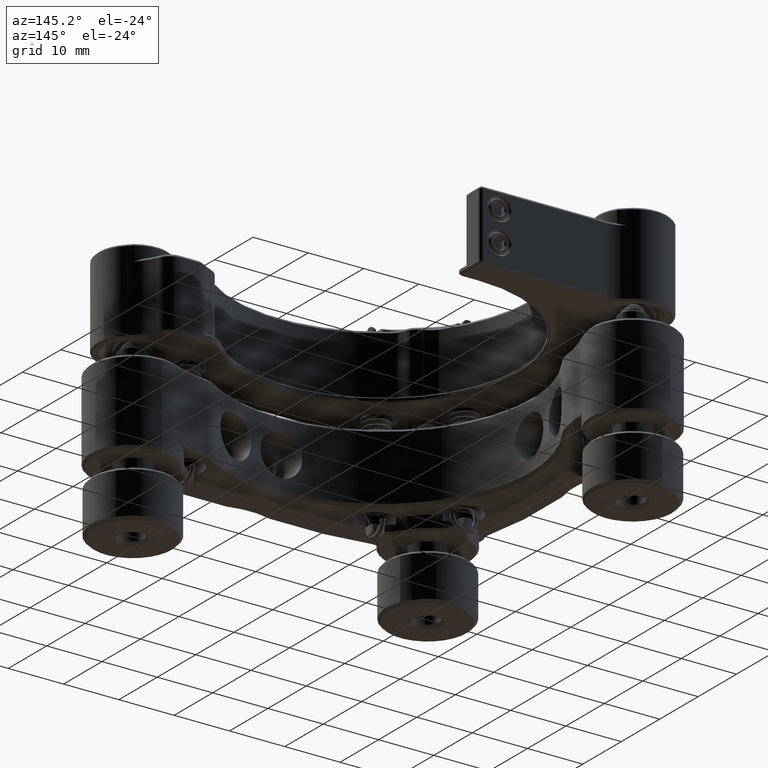
[diagram: clean part render]
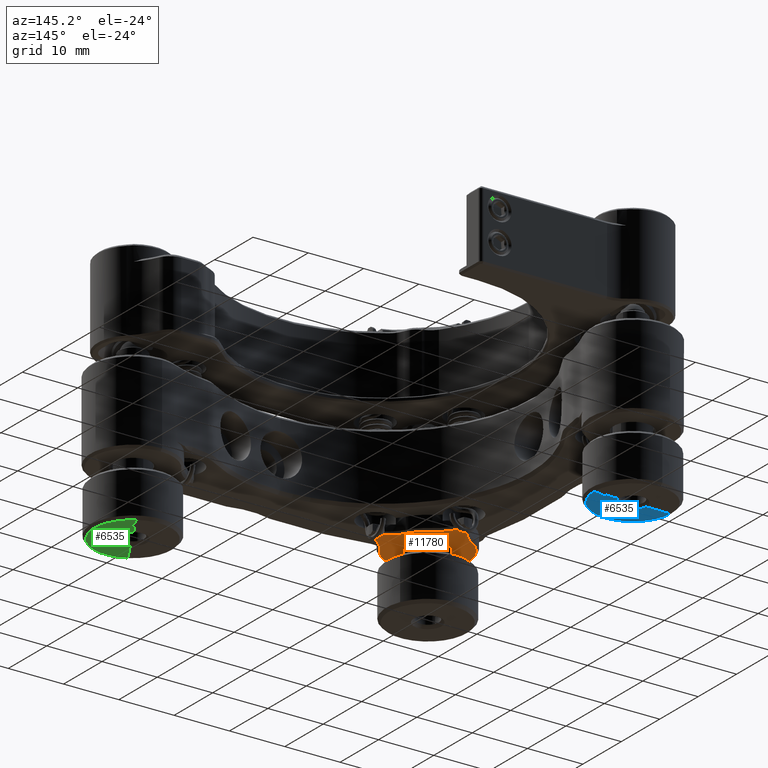
[diagram: same view with three faces highlighted in distinct colors, each labeled with its STEP entity id]
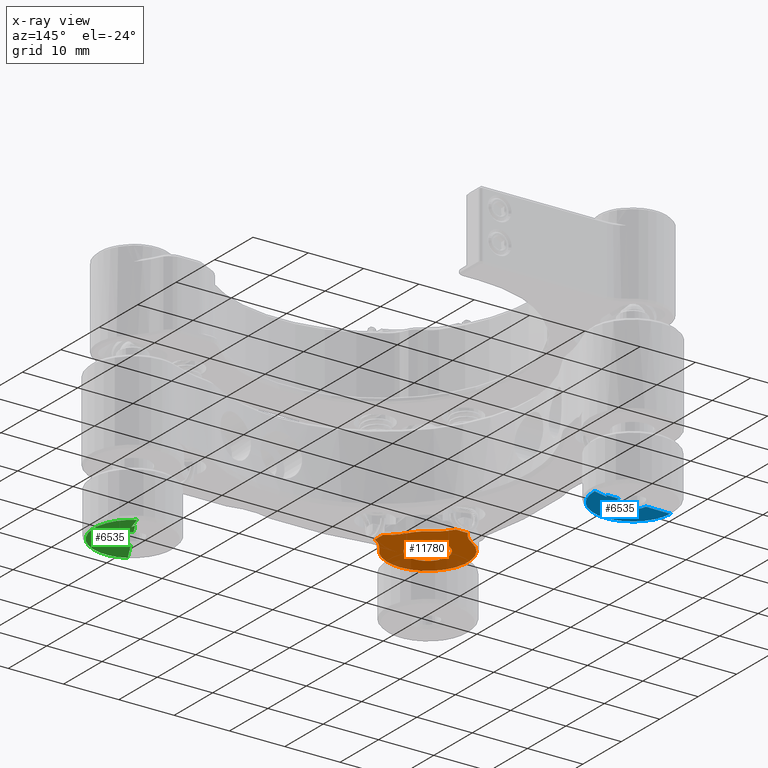
[diagram: x-ray of the same camera — body ghosted, the three highlighted faces saturated]
A machine part, auxiliary view with three faces highlighted in distinct colors.
The next image is the same camera in x-ray (body ghosted, the three faces saturated) — at least one of them is partly hidden behind the body in this view.
Their STEP definitions:

[orange] entity #11780 — the highlighted planar face has unit normal (0, 0, -1).
#59 = DIRECTION ( 'NONE',  ( -0.000000000000000000, 0.000000000000000000, 1.000000000000000000 ) ) ;
#210 = CARTESIAN_POINT ( 'NONE',  ( -0.7653493517946683422, 22.80522833792558757, 60.18502420018479171 ) ) ;
#343 = VERTEX_POINT ( 'NONE', #22457 ) ;
#357 = CARTESIAN_POINT ( 'NONE',  ( -1.117365578020270478, 22.81051906753168268, 60.18502420018477750 ) ) ;
#393 = ORIENTED_EDGE ( 'NONE', *, *, #27316, .T. ) ;
#562 = AXIS2_PLACEMENT_3D ( 'NONE', #4621, #29039, #22523 ) ;
#647 = CARTESIAN_POINT ( 'NONE',  ( -0.8532585333601061528, 22.80522833792559112, 60.18502420018480592 ) ) ;
#824 = AXIS2_PLACEMENT_3D ( 'NONE', #13574, #13013, #17403 ) ;
#932 = VERTEX_POINT ( 'NONE', #18307 ) ;
#990 = VERTEX_POINT ( 'NONE', #8560 ) ;
#1966 = CARTESIAN_POINT ( 'NONE',  ( 7.554555930480383097, 13.60718977266598984, 60.18502420018480592 ) ) ;
#1967 = DIRECTION ( 'NONE',  ( -1.000000000000000000, -8.518532524812835193E-16, 0.000000000000000000 ) ) ;
#2162 = B_SPLINE_CURVE_WITH_KNOTS ( 'NONE', 3,
 ( #20039, #29045, #8878, #17822, #5968, #23864 ),
 .UNSPECIFIED., .F., .F.,
 ( 4, 2, 4 ),
 ( 3.903127820947815962E-18, 0.0002630762422998615441, 0.0005261524845997191851 ),
 .UNSPECIFIED. ) ;
#2349 = CARTESIAN_POINT ( 'NONE',  ( 7.552550669755890844, 12.92063153528131458, 60.18502420018479171 ) ) ;
#2564 = CARTESIAN_POINT ( 'NONE',  ( -1.250540495281412534, 22.81188567596354133, 60.18502420018477750 ) ) ;
#2977 = CARTESIAN_POINT ( 'NONE',  ( 4.990031056397389086, 17.55385682309736239, 60.18502420018479171 ) ) ;
#3046 = CARTESIAN_POINT ( 'NONE',  ( -0.7653493517946683422, 22.80522833792558757, 60.18502420018479171 ) ) ;
#3108 = CARTESIAN_POINT ( 'NONE',  ( -8.293461811908150239, 26.19546241567546119, 60.18502420018479171 ) ) ;
#3593 = ORIENTED_EDGE ( 'NONE', *, *, #25045, .T. ) ;
#4210 = CARTESIAN_POINT ( 'NONE',  ( 25.37656882689406501, 40.62924649506378927, 60.18502420018479171 ) ) ;
#4569 = CIRCLE ( 'NONE', #9277, 6.857999999999996099 ) ;
#4594 = CIRCLE ( 'NONE', #824, 6.857999999999923268 ) ;
#4621 = CARTESIAN_POINT ( 'NONE',  ( -1.293431173105919596, 13.95924649506378401, 60.18502420018479171 ) ) ;
#4816 = ORIENTED_EDGE ( 'NONE', *, *, #8355, .T. ) ;
#4819 = CARTESIAN_POINT ( 'NONE',  ( 7.552550669755884627, 40.62924649506378216, 60.18502420018479171 ) ) ;
#4901 = VERTEX_POINT ( 'NONE', #29075 ) ;
#4941 = DIRECTION ( 'NONE',  ( -2.583697721438729718E-16, 1.000000000000000000, 0.000000000000000000 ) ) ;
#5210 = VERTEX_POINT ( 'NONE', #12282 ) ;
#5467 = EDGE_CURVE ( 'NONE', #4901, #990, #8093, .T. ) ;
#5914 = DIRECTION ( 'NONE',  ( 0.000000000000000000, -0.000000000000000000, -1.000000000000000000 ) ) ;
#5968 = CARTESIAN_POINT ( 'NONE',  ( -1.733581417244780987, 22.80522833792558401, 60.18502420018479171 ) ) ;
#5993 = LINE ( 'NONE', #26273, #13063 ) ;
#6491 = CARTESIAN_POINT ( 'NONE',  ( 2.321509732016548533, 13.95924649506378401, 60.18502420018479171 ) ) ;
#6569 = DIRECTION ( 'NONE',  ( 1.000000000000000000, 0.000000000000000000, 0.000000000000000000 ) ) ;
#6804 = VERTEX_POINT ( 'NONE', #16572 ) ;
#6867 = CIRCLE ( 'NONE', #23279, 3.614940905122474124 ) ;
#6970 = VECTOR ( 'NONE', #13772, 1000.000000000000000 ) ;
#7122 = CIRCLE ( 'NONE', #27297, 6.857999999999999652 ) ;
#7138 = AXIS2_PLACEMENT_3D ( 'NONE', #8051, #16996, #23325 ) ;
#7488 = CARTESIAN_POINT ( 'NONE',  ( 7.557909002323352610, 14.13528312624996452, 60.18502420018480592 ) ) ;
#8051 = CARTESIAN_POINT ( 'NONE',  ( -1.293431173105919596, 13.95924649506378401, 60.18502420018479171 ) ) ;
#8093 = CIRCLE ( 'NONE', #562, 7.239000000000068269 ) ;
#8355 = EDGE_CURVE ( 'NONE', #26379, #23023, #26395, .T. ) ;
#8560 = CARTESIAN_POINT ( 'NONE',  ( 4.990031056397427278, 10.36463616703018431, 60.18502420018479171 ) ) ;
#8758 = CIRCLE ( 'NONE', #20937, 7.239000000000024748 ) ;
#8878 = CARTESIAN_POINT ( 'NONE',  ( -1.469390293031126005, 22.81058809381694630, 60.18502420018480592 ) ) ;
#9277 = AXIS2_PLACEMENT_3D ( 'NONE', #12808, #19555, #17488 ) ;
#9343 = CARTESIAN_POINT ( 'NONE',  ( -1.073355090362226649, 22.80974778019937332, 60.18502420018477750 ) ) ;
#9692 = CARTESIAN_POINT ( 'NONE',  ( 7.559208007793849049, 13.95924649506383552, 60.18502420018479171 ) ) ;
#9765 = VERTEX_POINT ( 'NONE', #20550 ) ;
#9844 = B_SPLINE_CURVE_WITH_KNOTS ( 'NONE', 3,
 ( #210, #647, #27708, #9343, #357, #22684, #2564, #22537 ),
 .UNSPECIFIED., .F., .F.,
 ( 4, 2, 2, 4 ),
 ( 0.006817532226052925790, 0.007074175373250077802, 0.007202496946848653374, 0.007330818520447228946 ),
 .UNSPECIFIED. ) ;
#10472 = CARTESIAN_POINT ( 'NONE',  ( 5.706599465696283069, 26.19546241567547540, 60.18502420018479171 ) ) ;
#10526 = AXIS2_PLACEMENT_3D ( 'NONE', #18987, #5914, #25758 ) ;
#10588 = ORIENTED_EDGE ( 'NONE', *, *, #22834, .T. ) ;
#10762 = DIRECTION ( 'NONE',  ( 0.000000000000000000, -0.000000000000000000, -1.000000000000000000 ) ) ;
#11148 = LINE ( 'NONE', #4819, #6970 ) ;
#11660 = CIRCLE ( 'NONE', #23358, 6.857999999999925933 ) ;
#11780 = ADVANCED_FACE ( 'NONE', ( #24035, #12895 ), #24325, .T. ) ;
#12127 = EDGE_CURVE ( 'NONE', #20845, #9765, #22689, .T. ) ;
#12223 = ORIENTED_EDGE ( 'NONE', *, *, #27274, .T. ) ;
#12282 = CARTESIAN_POINT ( 'NONE',  ( 7.552550669755894397, 14.48732831637503438, 60.18502420018479171 ) ) ;
#12808 = CARTESIAN_POINT ( 'NONE',  ( 10.94278474750576180, 20.95927713386599933, 60.18502420018479171 ) ) ;
#12895 = FACE_BOUND ( 'NONE', #22578, .T. ) ;
#12897 = CARTESIAN_POINT ( 'NONE',  ( -1.293431173105919596, 13.95924649506378401, 60.18502420018479171 ) ) ;
#13013 = DIRECTION ( 'NONE',  ( 0.000000000000000000, -0.000000000000000000, -1.000000000000000000 ) ) ;
#13063 = VECTOR ( 'NONE', #26127, 1000.000000000000000 ) ;
#13283 = CARTESIAN_POINT ( 'NONE',  ( 7.559208007793850825, 13.87124414227666769, 60.18502420018479171 ) ) ;
#13574 = CARTESIAN_POINT ( 'NONE',  ( 10.94278474750576180, 6.959215856261566024, 60.18502420018479171 ) ) ;
#13772 = DIRECTION ( 'NONE',  ( -2.583697721438729718E-16, 1.000000000000000000, 0.000000000000000000 ) ) ;
#14195 = CARTESIAN_POINT ( 'NONE',  ( 7.552550669755884627, 40.62924649506378216, 60.18502420018479171 ) ) ;
#14706 = DIRECTION ( 'NONE',  ( 1.000000000000000000, 0.000000000000000000, 0.000000000000000000 ) ) ;
#14731 = VERTEX_POINT ( 'NONE', #22852 ) ;
#14972 = CARTESIAN_POINT ( 'NONE',  ( -1.293431173105919596, 13.95924649506378401, 60.18502420018479171 ) ) ;
#15323 = B_SPLINE_CURVE_WITH_KNOTS ( 'NONE', 3,
 ( #9692, #16569, #7488, #16424, #25397, #25545 ),
 .UNSPECIFIED., .F., .F.,
 ( 4, 2, 4 ),
 ( 0.003674336078343240150, 0.003929076275555706821, 0.004183816472768172624 ),
 .UNSPECIFIED. ) ;
#15377 = DIRECTION ( 'NONE',  ( 0.000000000000000000, -0.000000000000000000, -1.000000000000000000 ) ) ;
#15485 = CARTESIAN_POINT ( 'NONE',  ( 25.37656882689407922, 22.80522833792560888, 60.18502420018479171 ) ) ;
#15897 = EDGE_CURVE ( 'NONE', #16638, #21628, #8758, .T. ) ;
#16131 = EDGE_CURVE ( 'NONE', #23023, #343, #9844, .T. ) ;
#16386 = LINE ( 'NONE', #14195, #27338 ) ;
#16424 = CARTESIAN_POINT ( 'NONE',  ( 7.554556000486260636, 14.31129886845954502, 60.18502420018479171 ) ) ;
#16569 = CARTESIAN_POINT ( 'NONE',  ( 7.559208007793847273, 14.04727141604706553, 60.18502420018479171 ) ) ;
#16572 = CARTESIAN_POINT ( 'NONE',  ( -4.888041501139528400, 20.24270872456712667, 60.18502420018479171 ) ) ;
#16638 = VERTEX_POINT ( 'NONE', #2977 ) ;
#16956 = VERTEX_POINT ( 'NONE', #25601 ) ;
#16996 = DIRECTION ( 'NONE',  ( -0.000000000000000000, 0.000000000000000000, 1.000000000000000000 ) ) ;
#17131 = EDGE_CURVE ( 'NONE', #25439, #16638, #4569, .T. ) ;
#17247 = VERTEX_POINT ( 'NONE', #2349 ) ;
#17398 = CARTESIAN_POINT ( 'NONE',  ( 7.552550669755894397, 13.43116467375263667, 60.18502420018479171 ) ) ;
#17403 = DIRECTION ( 'NONE',  ( 1.000000000000000000, -3.541284436231491763E-15, 0.000000000000000000 ) ) ;
#17488 = DIRECTION ( 'NONE',  ( 1.000000000000000000, 0.000000000000000000, 0.000000000000000000 ) ) ;
#17822 = CARTESIAN_POINT ( 'NONE',  ( -1.645501552800553657, 22.80723337885045154, 60.18502420018479171 ) ) ;
#17925 = EDGE_CURVE ( 'NONE', #17247, #14731, #11148, .T. ) ;
#18036 = ORIENTED_EDGE ( 'NONE', *, *, #26180, .T. ) ;
#18307 = CARTESIAN_POINT ( 'NONE',  ( -1.821512994417066933, 22.80522833792558757, 60.18502420018479171 ) ) ;
#18365 = ORIENTED_EDGE ( 'NONE', *, *, #5467, .T. ) ;
#18491 = AXIS2_PLACEMENT_3D ( 'NONE', #4210, #26693, #6569 ) ;
#18528 = EDGE_CURVE ( 'NONE', #932, #24686, #5993, .T. ) ;
#18872 = EDGE_LOOP ( 'NONE', ( #28024, #27312, #4816, #20878, #393, #22214, #10588, #3593, #18365, #18940, #23681, #12223, #18036, #29054, #27975 ) ) ;
#18940 = ORIENTED_EDGE ( 'NONE', *, *, #22264, .T. ) ;
#18987 = CARTESIAN_POINT ( 'NONE',  ( -1.293431173105919596, 13.95924649506378401, 60.18502420018479171 ) ) ;
#19555 = DIRECTION ( 'NONE',  ( 0.000000000000000000, -0.000000000000000000, -1.000000000000000000 ) ) ;
#19558 = DIRECTION ( 'NONE',  ( 1.000000000000000000, 2.023591106417972754E-15, 0.000000000000000000 ) ) ;
#19635 = DIRECTION ( 'NONE',  ( 1.000000000000000000, 0.000000000000000000, 0.000000000000000000 ) ) ;
#19659 = DIRECTION ( 'NONE',  ( 1.000000000000000000, 0.000000000000000000, 0.000000000000000000 ) ) ;
#19788 = CIRCLE ( 'NONE', #7138, 7.239000000000068269 ) ;
#20012 = EDGE_CURVE ( 'NONE', #9765, #20845, #6867, .T. ) ;
#20039 = CARTESIAN_POINT ( 'NONE',  ( -1.293431173105867193, 22.81188567596354133, 60.18502420018479171 ) ) ;
#20550 = CARTESIAN_POINT ( 'NONE',  ( -4.908372078228386393, 13.95924649506378401, 60.18502420018479171 ) ) ;
#20843 = CARTESIAN_POINT ( 'NONE',  ( -2.332046132888409229, 22.80522833792558401, 60.18502420018479171 ) ) ;
#20845 = VERTEX_POINT ( 'NONE', #6491 ) ;
#20878 = ORIENTED_EDGE ( 'NONE', *, *, #16131, .T. ) ;
#20937 = AXIS2_PLACEMENT_3D ( 'NONE', #14972, #59, #19659 ) ;
#21404 = B_SPLINE_CURVE_WITH_KNOTS ( 'NONE', 3,
 ( #17398, #22093, #1966, #24439, #13283, #22240 ),
 .UNSPECIFIED., .F., .F.,
 ( 4, 2, 4 ),
 ( 0.003164986306624965277, 0.003419661192484102497, 0.003674336078343240150 ),
 .UNSPECIFIED. ) ;
#21628 = VERTEX_POINT ( 'NONE', #24310 ) ;
#22093 = CARTESIAN_POINT ( 'NONE',  ( 7.552550669755889956, 13.51916702653980273, 60.18502420018479171 ) ) ;
#22214 = ORIENTED_EDGE ( 'NONE', *, *, #18528, .T. ) ;
#22240 = CARTESIAN_POINT ( 'NONE',  ( 7.559208007793849049, 13.95924649506383552, 60.18502420018479171 ) ) ;
#22264 = EDGE_CURVE ( 'NONE', #990, #17247, #4594, .T. ) ;
#22345 = VECTOR ( 'NONE', #1967, 1000.000000000000000 ) ;
#22457 = CARTESIAN_POINT ( 'NONE',  ( -1.293431173105867193, 22.81188567596354133, 60.18502420018479171 ) ) ;
#22523 = DIRECTION ( 'NONE',  ( 1.000000000000000000, 0.000000000000000000, 0.000000000000000000 ) ) ;
#22537 = CARTESIAN_POINT ( 'NONE',  ( -1.293431173105867193, 22.81188567596354133, 60.18502420018479171 ) ) ;
#22557 = CARTESIAN_POINT ( 'NONE',  ( -0.2548162133235373772, 22.80522833792558757, 60.18502420018479171 ) ) ;
#22578 = EDGE_LOOP ( 'NONE', ( #27987, #25002 ) ) ;
#22684 = CARTESIAN_POINT ( 'NONE',  ( -1.205393062110049707, 22.81158856745110697, 60.18502420018478460 ) ) ;
#22689 = CIRCLE ( 'NONE', #10526, 3.614940905122474124 ) ;
#22834 = EDGE_CURVE ( 'NONE', #24686, #6804, #11660, .T. ) ;
#22852 = CARTESIAN_POINT ( 'NONE',  ( 7.552550669755894397, 13.43116467375263667, 60.18502420018479171 ) ) ;
#23023 = VERTEX_POINT ( 'NONE', #3046 ) ;
#23279 = AXIS2_PLACEMENT_3D ( 'NONE', #12897, #15377, #19635 ) ;
#23293 = CARTESIAN_POINT ( 'NONE',  ( 7.552550669755890844, 14.99786145484617528, 60.18502420018479171 ) ) ;
#23325 = DIRECTION ( 'NONE',  ( 1.000000000000000000, 0.000000000000000000, 0.000000000000000000 ) ) ;
#23358 = AXIS2_PLACEMENT_3D ( 'NONE', #3108, #28243, #14706 ) ;
#23681 = ORIENTED_EDGE ( 'NONE', *, *, #17925, .T. ) ;
#23864 = CARTESIAN_POINT ( 'NONE',  ( -1.821512994417066933, 22.80522833792558757, 60.18502420018479171 ) ) ;
#24035 = FACE_OUTER_BOUND ( 'NONE', #18872, .T. ) ;
#24310 = CARTESIAN_POINT ( 'NONE',  ( 2.301179154927647463, 20.24270872456709824, 60.18502420018479171 ) ) ;
#24325 = PLANE ( 'NONE',  #18491 ) ;
#24401 = EDGE_CURVE ( 'NONE', #21628, #26379, #7122, .T. ) ;
#24439 = CARTESIAN_POINT ( 'NONE',  ( 7.557909346055820876, 13.78322858220489522, 60.18502420018479171 ) ) ;
#24686 = VERTEX_POINT ( 'NONE', #20843 ) ;
#25002 = ORIENTED_EDGE ( 'NONE', *, *, #20012, .T. ) ;
#25045 = EDGE_CURVE ( 'NONE', #6804, #4901, #19788, .T. ) ;
#25237 = EDGE_CURVE ( 'NONE', #5210, #25439, #16386, .T. ) ;
#25397 = CARTESIAN_POINT ( 'NONE',  ( 7.552550669755889068, 14.39930339539180260, 60.18502420018479171 ) ) ;
#25439 = VERTEX_POINT ( 'NONE', #23293 ) ;
#25545 = CARTESIAN_POINT ( 'NONE',  ( 7.552550669755894397, 14.48732831637503438, 60.18502420018479171 ) ) ;
#25601 = CARTESIAN_POINT ( 'NONE',  ( 7.559208007793849049, 13.95924649506383552, 60.18502420018479171 ) ) ;
#25758 = DIRECTION ( 'NONE',  ( 1.000000000000000000, 0.000000000000000000, 0.000000000000000000 ) ) ;
#26127 = DIRECTION ( 'NONE',  ( -1.000000000000000000, -8.518532524812835193E-16, 0.000000000000000000 ) ) ;
#26180 = EDGE_CURVE ( 'NONE', #16956, #5210, #15323, .T. ) ;
#26273 = CARTESIAN_POINT ( 'NONE',  ( 25.37656882689407922, 22.80522833792560888, 60.18502420018479171 ) ) ;
#26379 = VERTEX_POINT ( 'NONE', #22557 ) ;
#26395 = LINE ( 'NONE', #15485, #22345 ) ;
#26693 = DIRECTION ( 'NONE',  ( -0.000000000000000000, 0.000000000000000000, 1.000000000000000000 ) ) ;
#27274 = EDGE_CURVE ( 'NONE', #14731, #16956, #21404, .T. ) ;
#27297 = AXIS2_PLACEMENT_3D ( 'NONE', #10472, #10762, #19558 ) ;
#27312 = ORIENTED_EDGE ( 'NONE', *, *, #24401, .T. ) ;
#27316 = EDGE_CURVE ( 'NONE', #343, #932, #2162, .T. ) ;
#27338 = VECTOR ( 'NONE', #4941, 1000.000000000000000 ) ;
#27708 = CARTESIAN_POINT ( 'NONE',  ( -0.9413263972563012949, 22.80723259691542992, 60.18502420018479171 ) ) ;
#27975 = ORIENTED_EDGE ( 'NONE', *, *, #17131, .T. ) ;
#27987 = ORIENTED_EDGE ( 'NONE', *, *, #12127, .T. ) ;
#28024 = ORIENTED_EDGE ( 'NONE', *, *, #15897, .T. ) ;
#28243 = DIRECTION ( 'NONE',  ( 0.000000000000000000, -0.000000000000000000, -1.000000000000000000 ) ) ;
#29039 = DIRECTION ( 'NONE',  ( -0.000000000000000000, 0.000000000000000000, 1.000000000000000000 ) ) ;
#29045 = CARTESIAN_POINT ( 'NONE',  ( -1.381362750278157359, 22.81188567596354133, 60.18502420018479171 ) ) ;
#29054 = ORIENTED_EDGE ( 'NONE', *, *, #25237, .T. ) ;
#29075 = CARTESIAN_POINT ( 'NONE',  ( -8.532431173105987199, 13.95924649506378401, 60.18502420018479171 ) ) ;

[blue] entity #6535 — the highlighted planar face has unit normal (0, 0, 1).
#455 = DIRECTION ( 'NONE',  ( 0.000000000000000000, 0.000000000000000000, -1.000000000000000000 ) ) ;
#850 = VERTEX_POINT ( 'NONE', #4669 ) ;
#962 = LINE ( 'NONE', #14214, #9329 ) ;
#1097 = EDGE_CURVE ( 'NONE', #11558, #8203, #19334, .T. ) ;
#1130 = DIRECTION ( 'NONE',  ( 1.000000000000000000, 0.000000000000000000, 0.000000000000000000 ) ) ;
#2882 = VECTOR ( 'NONE', #19488, 1000.000000000000114 ) ;
#3140 = ORIENTED_EDGE ( 'NONE', *, *, #20496, .T. ) ;
#3488 = DIRECTION ( 'NONE',  ( 0.000000000000000000, 0.000000000000000000, -1.000000000000000000 ) ) ;
#4172 = ORIENTED_EDGE ( 'NONE', *, *, #19804, .T. ) ;
#4272 = CIRCLE ( 'NONE', #25859, 6.999999999999991118 ) ;
#4669 = CARTESIAN_POINT ( 'NONE',  ( 0.000000000000000000, 4.337654456849506346, -0.6041259447237552482 ) ) ;
#5032 = VECTOR ( 'NONE', #27012, 1000.000000000000000 ) ;
#5522 = VERTEX_POINT ( 'NONE', #24716 ) ;
#5632 = VERTEX_POINT ( 'NONE', #13278 ) ;
#6133 = VERTEX_POINT ( 'NONE', #13390 ) ;
#6535 = ADVANCED_FACE ( 'NONE', ( #20105 ), #22310, .F. ) ;
#6796 = CARTESIAN_POINT ( 'NONE',  ( 0.000000000000000000, 0.000000000000000000, 0.000000000000000000 ) ) ;
#6915 = CARTESIAN_POINT ( 'NONE',  ( 0.000000000000000000, 0.000000000000000000, 0.000000000000000000 ) ) ;
#7251 = ORIENTED_EDGE ( 'NONE', *, *, #27848, .T. ) ;
#7655 = EDGE_CURVE ( 'NONE', #6133, #8203, #28534, .T. ) ;
#8203 = VERTEX_POINT ( 'NONE', #14052 ) ;
#8642 = LINE ( 'NONE', #8925, #5032 ) ;
#8925 = CARTESIAN_POINT ( 'NONE',  ( 0.000000000000000000, 4.337654456849506346, -0.6041259447237552482 ) ) ;
#9121 = AXIS2_PLACEMENT_3D ( 'NONE', #26458, #26601, #11163 ) ;
#9146 = DIRECTION ( 'NONE',  ( -1.000000000000000000, -0.000000000000000000, -0.000000000000000000 ) ) ;
#9317 = LINE ( 'NONE', #12735, #2882 ) ;
#9329 = VECTOR ( 'NONE', #15719, 1000.000000000000000 ) ;
#9691 = CIRCLE ( 'NONE', #10150, 2.500000000000009326 ) ;
#10150 = AXIS2_PLACEMENT_3D ( 'NONE', #23457, #1130, #3488 ) ;
#11163 = DIRECTION ( 'NONE',  ( 0.000000000000000000, 0.000000000000000000, -1.000000000000000000 ) ) ;
#11166 = DIRECTION ( 'NONE',  ( 0.000000000000000000, -1.000000000000000000, 1.225254409782124196E-16 ) ) ;
#11558 = VERTEX_POINT ( 'NONE', #25539 ) ;
#12735 = CARTESIAN_POINT ( 'NONE',  ( 0.000000000000000000, 6.999999999999991118, 1.310372075087666953E-15 ) ) ;
#13140 = ORIENTED_EDGE ( 'NONE', *, *, #24025, .F. ) ;
#13278 = CARTESIAN_POINT ( 'NONE',  ( 0.000000000000000000, 2.497336235949055183, -0.1153764474052281774 ) ) ;
#13390 = CARTESIAN_POINT ( 'NONE',  ( 0.000000000000000000, -2.497336235949055183, -0.1153764474052275529 ) ) ;
#13508 = DIRECTION ( 'NONE',  ( -1.000000000000000000, -0.000000000000000000, -0.000000000000000000 ) ) ;
#14052 = CARTESIAN_POINT ( 'NONE',  ( 0.000000000000000000, -6.999049097940664765, -0.1153764474052270117 ) ) ;
#14214 = CARTESIAN_POINT ( 'NONE',  ( 0.000000000000000000, 4.886748387684781925, -0.1153764474052284689 ) ) ;
#14361 = VECTOR ( 'NONE', #11166, 1000.000000000000000 ) ;
#15338 = ORIENTED_EDGE ( 'NONE', *, *, #7655, .F. ) ;
#15719 = DIRECTION ( 'NONE',  ( 0.000000000000000000, -1.000000000000000000, 1.225254409782124196E-16 ) ) ;
#15746 = EDGE_LOOP ( 'NONE', ( #7251, #19607, #15338, #3140, #4172, #25956, #21522, #13140 ) ) ;
#16434 = CARTESIAN_POINT ( 'NONE',  ( 0.000000000000000000, 6.999999999999991118, 1.310372075087666953E-15 ) ) ;
#16977 = AXIS2_PLACEMENT_3D ( 'NONE', #6796, #9146, #18088 ) ;
#18088 = DIRECTION ( 'NONE',  ( 0.000000000000000000, 0.000000000000000000, -1.000000000000000000 ) ) ;
#18538 = DIRECTION ( 'NONE',  ( 1.000000000000000000, 0.000000000000000000, 0.000000000000000000 ) ) ;
#19080 = AXIS2_PLACEMENT_3D ( 'NONE', #21002, #18538, #455 ) ;
#19334 = CIRCLE ( 'NONE', #16977, 6.999999999999991118 ) ;
#19488 = DIRECTION ( 'NONE',  ( 0.000000000000000000, -0.9752082065507530206, -0.2212892990545717309 ) ) ;
#19607 = ORIENTED_EDGE ( 'NONE', *, *, #1097, .T. ) ;
#19804 = EDGE_CURVE ( 'NONE', #5522, #5632, #9691, .T. ) ;
#20105 = FACE_OUTER_BOUND ( 'NONE', #15746, .T. ) ;
#20446 = CARTESIAN_POINT ( 'NONE',  ( 0.000000000000000000, 4.886748387684781925, -0.1153764474052284689 ) ) ;
#20496 = EDGE_CURVE ( 'NONE', #6133, #5522, #22817, .T. ) ;
#21002 = CARTESIAN_POINT ( 'NONE',  ( 0.000000000000000000, 0.000000000000000000, 0.000000000000000000 ) ) ;
#21164 = EDGE_CURVE ( 'NONE', #850, #24112, #8642, .T. ) ;
#21522 = ORIENTED_EDGE ( 'NONE', *, *, #21164, .F. ) ;
#22168 = CARTESIAN_POINT ( 'NONE',  ( 0.000000000000000000, 4.886748387684781925, -0.1153764474052284689 ) ) ;
#22310 = PLANE ( 'NONE',  #9121 ) ;
#22463 = DIRECTION ( 'NONE',  ( 0.000000000000000000, 8.881784197001252323E-16, -1.000000000000000000 ) ) ;
#22817 = CIRCLE ( 'NONE', #19080, 2.500000000000009326 ) ;
#23007 = EDGE_CURVE ( 'NONE', #24112, #5632, #962, .T. ) ;
#23457 = CARTESIAN_POINT ( 'NONE',  ( 0.000000000000000000, 0.000000000000000000, 0.000000000000000000 ) ) ;
#24025 = EDGE_CURVE ( 'NONE', #28031, #850, #9317, .T. ) ;
#24112 = VERTEX_POINT ( 'NONE', #20446 ) ;
#24716 = CARTESIAN_POINT ( 'NONE',  ( 0.000000000000000000, 3.061616997868393988E-16, -2.500000000000009326 ) ) ;
#25539 = CARTESIAN_POINT ( 'NONE',  ( 0.000000000000000000, 0.000000000000000000, -6.999999999999991118 ) ) ;
#25859 = AXIS2_PLACEMENT_3D ( 'NONE', #6915, #13508, #22463 ) ;
#25956 = ORIENTED_EDGE ( 'NONE', *, *, #23007, .F. ) ;
#26458 = CARTESIAN_POINT ( 'NONE',  ( 0.000000000000000000, 0.000000000000000000, 0.000000000000000000 ) ) ;
#26601 = DIRECTION ( 'NONE',  ( 1.000000000000000000, 0.000000000000000000, 0.000000000000000000 ) ) ;
#27012 = DIRECTION ( 'NONE',  ( 0.000000000000000000, 0.7469592730965012306, 0.6648697950239179644 ) ) ;
#27848 = EDGE_CURVE ( 'NONE', #28031, #11558, #4272, .T. ) ;
#28031 = VERTEX_POINT ( 'NONE', #16434 ) ;
#28534 = LINE ( 'NONE', #22168, #14361 ) ;

[green] entity #6535 — the highlighted planar face has unit normal (0, 0, 1).
#455 = DIRECTION ( 'NONE',  ( 0.000000000000000000, 0.000000000000000000, -1.000000000000000000 ) ) ;
#850 = VERTEX_POINT ( 'NONE', #4669 ) ;
#962 = LINE ( 'NONE', #14214, #9329 ) ;
#1097 = EDGE_CURVE ( 'NONE', #11558, #8203, #19334, .T. ) ;
#1130 = DIRECTION ( 'NONE',  ( 1.000000000000000000, 0.000000000000000000, 0.000000000000000000 ) ) ;
#2882 = VECTOR ( 'NONE', #19488, 1000.000000000000114 ) ;
#3140 = ORIENTED_EDGE ( 'NONE', *, *, #20496, .T. ) ;
#3488 = DIRECTION ( 'NONE',  ( 0.000000000000000000, 0.000000000000000000, -1.000000000000000000 ) ) ;
#4172 = ORIENTED_EDGE ( 'NONE', *, *, #19804, .T. ) ;
#4272 = CIRCLE ( 'NONE', #25859, 6.999999999999991118 ) ;
#4669 = CARTESIAN_POINT ( 'NONE',  ( 0.000000000000000000, 4.337654456849506346, -0.6041259447237552482 ) ) ;
#5032 = VECTOR ( 'NONE', #27012, 1000.000000000000000 ) ;
#5522 = VERTEX_POINT ( 'NONE', #24716 ) ;
#5632 = VERTEX_POINT ( 'NONE', #13278 ) ;
#6133 = VERTEX_POINT ( 'NONE', #13390 ) ;
#6535 = ADVANCED_FACE ( 'NONE', ( #20105 ), #22310, .F. ) ;
#6796 = CARTESIAN_POINT ( 'NONE',  ( 0.000000000000000000, 0.000000000000000000, 0.000000000000000000 ) ) ;
#6915 = CARTESIAN_POINT ( 'NONE',  ( 0.000000000000000000, 0.000000000000000000, 0.000000000000000000 ) ) ;
#7251 = ORIENTED_EDGE ( 'NONE', *, *, #27848, .T. ) ;
#7655 = EDGE_CURVE ( 'NONE', #6133, #8203, #28534, .T. ) ;
#8203 = VERTEX_POINT ( 'NONE', #14052 ) ;
#8642 = LINE ( 'NONE', #8925, #5032 ) ;
#8925 = CARTESIAN_POINT ( 'NONE',  ( 0.000000000000000000, 4.337654456849506346, -0.6041259447237552482 ) ) ;
#9121 = AXIS2_PLACEMENT_3D ( 'NONE', #26458, #26601, #11163 ) ;
#9146 = DIRECTION ( 'NONE',  ( -1.000000000000000000, -0.000000000000000000, -0.000000000000000000 ) ) ;
#9317 = LINE ( 'NONE', #12735, #2882 ) ;
#9329 = VECTOR ( 'NONE', #15719, 1000.000000000000000 ) ;
#9691 = CIRCLE ( 'NONE', #10150, 2.500000000000009326 ) ;
#10150 = AXIS2_PLACEMENT_3D ( 'NONE', #23457, #1130, #3488 ) ;
#11163 = DIRECTION ( 'NONE',  ( 0.000000000000000000, 0.000000000000000000, -1.000000000000000000 ) ) ;
#11166 = DIRECTION ( 'NONE',  ( 0.000000000000000000, -1.000000000000000000, 1.225254409782124196E-16 ) ) ;
#11558 = VERTEX_POINT ( 'NONE', #25539 ) ;
#12735 = CARTESIAN_POINT ( 'NONE',  ( 0.000000000000000000, 6.999999999999991118, 1.310372075087666953E-15 ) ) ;
#13140 = ORIENTED_EDGE ( 'NONE', *, *, #24025, .F. ) ;
#13278 = CARTESIAN_POINT ( 'NONE',  ( 0.000000000000000000, 2.497336235949055183, -0.1153764474052281774 ) ) ;
#13390 = CARTESIAN_POINT ( 'NONE',  ( 0.000000000000000000, -2.497336235949055183, -0.1153764474052275529 ) ) ;
#13508 = DIRECTION ( 'NONE',  ( -1.000000000000000000, -0.000000000000000000, -0.000000000000000000 ) ) ;
#14052 = CARTESIAN_POINT ( 'NONE',  ( 0.000000000000000000, -6.999049097940664765, -0.1153764474052270117 ) ) ;
#14214 = CARTESIAN_POINT ( 'NONE',  ( 0.000000000000000000, 4.886748387684781925, -0.1153764474052284689 ) ) ;
#14361 = VECTOR ( 'NONE', #11166, 1000.000000000000000 ) ;
#15338 = ORIENTED_EDGE ( 'NONE', *, *, #7655, .F. ) ;
#15719 = DIRECTION ( 'NONE',  ( 0.000000000000000000, -1.000000000000000000, 1.225254409782124196E-16 ) ) ;
#15746 = EDGE_LOOP ( 'NONE', ( #7251, #19607, #15338, #3140, #4172, #25956, #21522, #13140 ) ) ;
#16434 = CARTESIAN_POINT ( 'NONE',  ( 0.000000000000000000, 6.999999999999991118, 1.310372075087666953E-15 ) ) ;
#16977 = AXIS2_PLACEMENT_3D ( 'NONE', #6796, #9146, #18088 ) ;
#18088 = DIRECTION ( 'NONE',  ( 0.000000000000000000, 0.000000000000000000, -1.000000000000000000 ) ) ;
#18538 = DIRECTION ( 'NONE',  ( 1.000000000000000000, 0.000000000000000000, 0.000000000000000000 ) ) ;
#19080 = AXIS2_PLACEMENT_3D ( 'NONE', #21002, #18538, #455 ) ;
#19334 = CIRCLE ( 'NONE', #16977, 6.999999999999991118 ) ;
#19488 = DIRECTION ( 'NONE',  ( 0.000000000000000000, -0.9752082065507530206, -0.2212892990545717309 ) ) ;
#19607 = ORIENTED_EDGE ( 'NONE', *, *, #1097, .T. ) ;
#19804 = EDGE_CURVE ( 'NONE', #5522, #5632, #9691, .T. ) ;
#20105 = FACE_OUTER_BOUND ( 'NONE', #15746, .T. ) ;
#20446 = CARTESIAN_POINT ( 'NONE',  ( 0.000000000000000000, 4.886748387684781925, -0.1153764474052284689 ) ) ;
#20496 = EDGE_CURVE ( 'NONE', #6133, #5522, #22817, .T. ) ;
#21002 = CARTESIAN_POINT ( 'NONE',  ( 0.000000000000000000, 0.000000000000000000, 0.000000000000000000 ) ) ;
#21164 = EDGE_CURVE ( 'NONE', #850, #24112, #8642, .T. ) ;
#21522 = ORIENTED_EDGE ( 'NONE', *, *, #21164, .F. ) ;
#22168 = CARTESIAN_POINT ( 'NONE',  ( 0.000000000000000000, 4.886748387684781925, -0.1153764474052284689 ) ) ;
#22310 = PLANE ( 'NONE',  #9121 ) ;
#22463 = DIRECTION ( 'NONE',  ( 0.000000000000000000, 8.881784197001252323E-16, -1.000000000000000000 ) ) ;
#22817 = CIRCLE ( 'NONE', #19080, 2.500000000000009326 ) ;
#23007 = EDGE_CURVE ( 'NONE', #24112, #5632, #962, .T. ) ;
#23457 = CARTESIAN_POINT ( 'NONE',  ( 0.000000000000000000, 0.000000000000000000, 0.000000000000000000 ) ) ;
#24025 = EDGE_CURVE ( 'NONE', #28031, #850, #9317, .T. ) ;
#24112 = VERTEX_POINT ( 'NONE', #20446 ) ;
#24716 = CARTESIAN_POINT ( 'NONE',  ( 0.000000000000000000, 3.061616997868393988E-16, -2.500000000000009326 ) ) ;
#25539 = CARTESIAN_POINT ( 'NONE',  ( 0.000000000000000000, 0.000000000000000000, -6.999999999999991118 ) ) ;
#25859 = AXIS2_PLACEMENT_3D ( 'NONE', #6915, #13508, #22463 ) ;
#25956 = ORIENTED_EDGE ( 'NONE', *, *, #23007, .F. ) ;
#26458 = CARTESIAN_POINT ( 'NONE',  ( 0.000000000000000000, 0.000000000000000000, 0.000000000000000000 ) ) ;
#26601 = DIRECTION ( 'NONE',  ( 1.000000000000000000, 0.000000000000000000, 0.000000000000000000 ) ) ;
#27012 = DIRECTION ( 'NONE',  ( 0.000000000000000000, 0.7469592730965012306, 0.6648697950239179644 ) ) ;
#27848 = EDGE_CURVE ( 'NONE', #28031, #11558, #4272, .T. ) ;
#28031 = VERTEX_POINT ( 'NONE', #16434 ) ;
#28534 = LINE ( 'NONE', #22168, #14361 ) ;